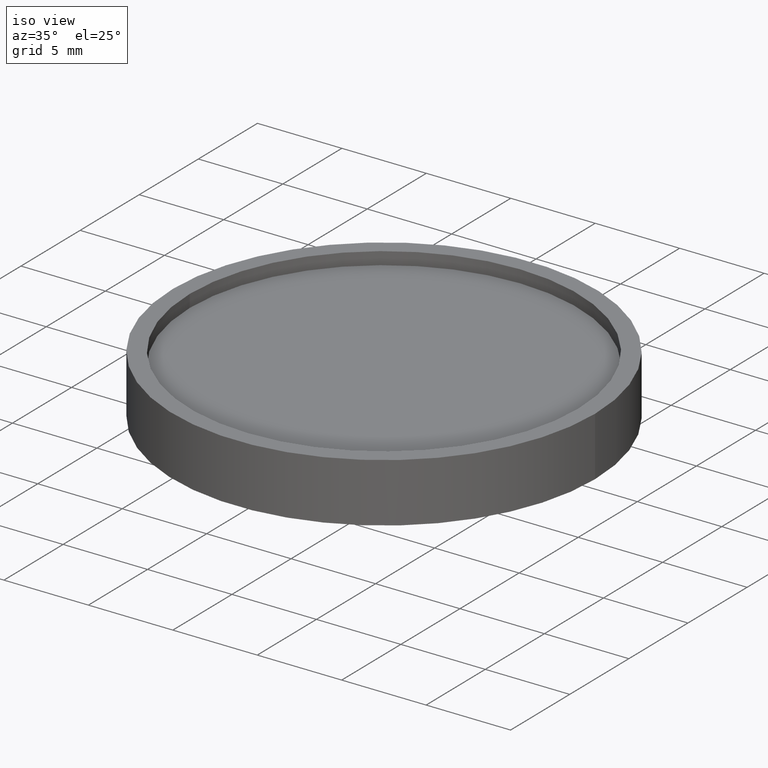
[diagram: clean part render]
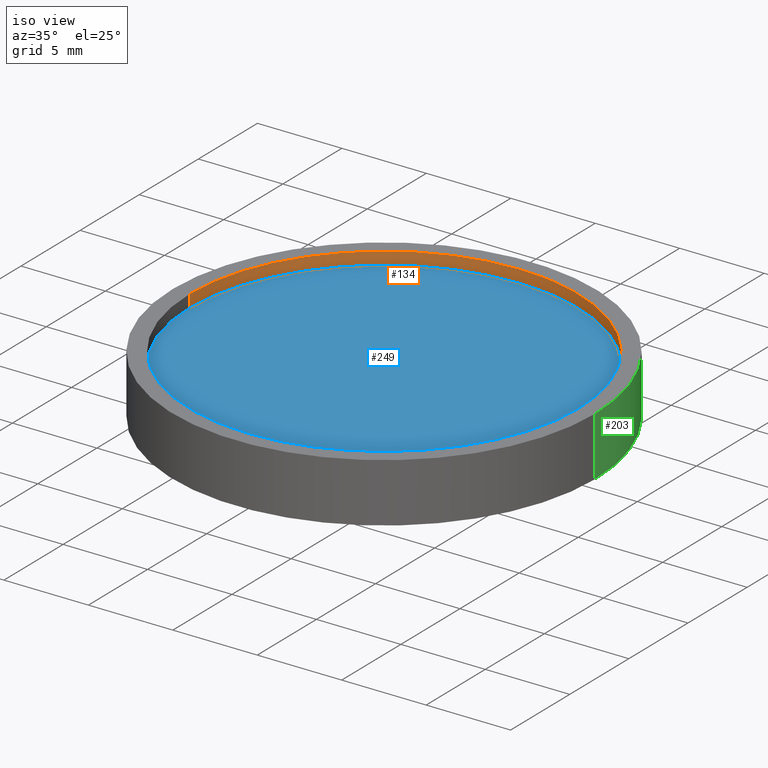
[diagram: same view with three faces highlighted in distinct colors, each labeled with its STEP entity id]
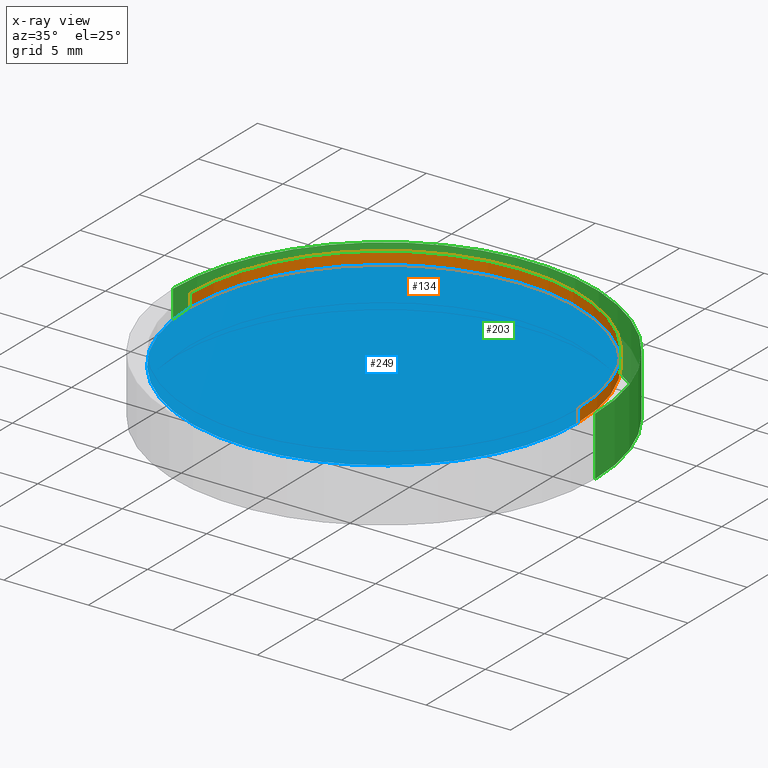
[diagram: x-ray of the same camera — body ghosted, the three highlighted faces saturated]
A machine part, iso view with three faces highlighted in distinct colors.
The next image is the same camera in x-ray (body ghosted, the three faces saturated) — at least one of them is partly hidden behind the body in this view.
Their STEP definitions:

[orange] entity #134 — the highlighted cylindrical surface (partial cylindrical patch) has radius 11.5 mm, axis along (-0, -0, 1).
#14 = EDGE_CURVE ( 'NONE', #90, #156, #280, .T. ) ;
#37 = AXIS2_PLACEMENT_3D ( 'NONE', #370, #147, #87 ) ;
#87 = DIRECTION ( 'NONE',  ( 1.000000000000000000, 0.000000000000000000, 0.000000000000000000 ) ) ;
#90 = VERTEX_POINT ( 'NONE', #243 ) ;
#94 = CIRCLE ( 'NONE', #376, 11.50000000000000000 ) ;
#104 = VERTEX_POINT ( 'NONE', #110 ) ;
#110 = CARTESIAN_POINT ( 'NONE',  ( 11.50000000000000000, 0.000000000000000000, 2.750000000000000000 ) ) ;
#114 = FACE_OUTER_BOUND ( 'NONE', #125, .T. ) ;
#120 = DIRECTION ( 'NONE',  ( 0.000000000000000000, 0.000000000000000000, 1.000000000000000000 ) ) ;
#125 = EDGE_LOOP ( 'NONE', ( #408, #189, #132, #282 ) ) ;
#126 = CARTESIAN_POINT ( 'NONE',  ( 11.50000000000000000, 0.000000000000000000, 3.500000000000000000 ) ) ;
#132 = ORIENTED_EDGE ( 'NONE', *, *, #197, .T. ) ;
#134 = ADVANCED_FACE ( 'NONE', ( #114 ), #360, .F. ) ;
#142 = CARTESIAN_POINT ( 'NONE',  ( -11.50000000000000000, 1.408343819019456176E-15, 3.500000000000000000 ) ) ;
#143 = CIRCLE ( 'NONE', #37, 11.50000000000000000 ) ;
#144 = DIRECTION ( 'NONE',  ( 1.000000000000000000, 0.000000000000000000, 0.000000000000000000 ) ) ;
#147 = DIRECTION ( 'NONE',  ( 0.000000000000000000, 0.000000000000000000, 1.000000000000000000 ) ) ;
#156 = VERTEX_POINT ( 'NONE', #142 ) ;
#157 = CARTESIAN_POINT ( 'NONE',  ( -11.50000000000000000, 1.408343819019456176E-15, 2.750000000000000000 ) ) ;
#183 = VECTOR ( 'NONE', #276, 1000.000000000000000 ) ;
#189 = ORIENTED_EDGE ( 'NONE', *, *, #222, .F. ) ;
#197 = EDGE_CURVE ( 'NONE', #104, #373, #402, .T. ) ;
#202 = CARTESIAN_POINT ( 'NONE',  ( 0.000000000000000000, 0.000000000000000000, 2.750000000000000000 ) ) ;
#222 = EDGE_CURVE ( 'NONE', #104, #90, #143, .T. ) ;
#227 = DIRECTION ( 'NONE',  ( -0.000000000000000000, -0.000000000000000000, 1.000000000000000000 ) ) ;
#231 = EDGE_CURVE ( 'NONE', #373, #156, #94, .T. ) ;
#243 = CARTESIAN_POINT ( 'NONE',  ( -11.50000000000000000, 1.408343819019456176E-15, 2.750000000000000000 ) ) ;
#263 = AXIS2_PLACEMENT_3D ( 'NONE', #202, #227, #144 ) ;
#272 = DIRECTION ( 'NONE',  ( 1.000000000000000000, 0.000000000000000000, 0.000000000000000000 ) ) ;
#276 = DIRECTION ( 'NONE',  ( -0.000000000000000000, -0.000000000000000000, 1.000000000000000000 ) ) ;
#280 = LINE ( 'NONE', #157, #183 ) ;
#282 = ORIENTED_EDGE ( 'NONE', *, *, #231, .T. ) ;
#308 = CARTESIAN_POINT ( 'NONE',  ( 11.50000000000000000, 0.000000000000000000, 2.750000000000000000 ) ) ;
#323 = VECTOR ( 'NONE', #334, 1000.000000000000000 ) ;
#334 = DIRECTION ( 'NONE',  ( -0.000000000000000000, -0.000000000000000000, 1.000000000000000000 ) ) ;
#360 = CYLINDRICAL_SURFACE ( 'NONE', #263, 11.50000000000000000 ) ;
#370 = CARTESIAN_POINT ( 'NONE',  ( 0.000000000000000000, 0.000000000000000000, 2.750000000000000000 ) ) ;
#373 = VERTEX_POINT ( 'NONE', #126 ) ;
#376 = AXIS2_PLACEMENT_3D ( 'NONE', #405, #120, #272 ) ;
#402 = LINE ( 'NONE', #308, #323 ) ;
#405 = CARTESIAN_POINT ( 'NONE',  ( 0.000000000000000000, 0.000000000000000000, 3.500000000000000000 ) ) ;
#408 = ORIENTED_EDGE ( 'NONE', *, *, #14, .F. ) ;

[blue] entity #249 — the highlighted planar face has unit normal (0, 0, 1).
#28 = ORIENTED_EDGE ( 'NONE', *, *, #355, .T. ) ;
#37 = AXIS2_PLACEMENT_3D ( 'NONE', #370, #147, #87 ) ;
#46 = CIRCLE ( 'NONE', #241, 11.50000000000000000 ) ;
#80 = PLANE ( 'NONE',  #201 ) ;
#87 = DIRECTION ( 'NONE',  ( 1.000000000000000000, 0.000000000000000000, 0.000000000000000000 ) ) ;
#90 = VERTEX_POINT ( 'NONE', #243 ) ;
#104 = VERTEX_POINT ( 'NONE', #110 ) ;
#110 = CARTESIAN_POINT ( 'NONE',  ( 11.50000000000000000, 0.000000000000000000, 2.750000000000000000 ) ) ;
#118 = DIRECTION ( 'NONE',  ( 0.000000000000000000, 0.000000000000000000, 1.000000000000000000 ) ) ;
#143 = CIRCLE ( 'NONE', #37, 11.50000000000000000 ) ;
#147 = DIRECTION ( 'NONE',  ( 0.000000000000000000, 0.000000000000000000, 1.000000000000000000 ) ) ;
#193 = EDGE_LOOP ( 'NONE', ( #309, #28 ) ) ;
#201 = AXIS2_PLACEMENT_3D ( 'NONE', #407, #118, #205 ) ;
#205 = DIRECTION ( 'NONE',  ( 1.000000000000000000, 0.000000000000000000, -0.000000000000000000 ) ) ;
#222 = EDGE_CURVE ( 'NONE', #104, #90, #143, .T. ) ;
#241 = AXIS2_PLACEMENT_3D ( 'NONE', #315, #289, #342 ) ;
#243 = CARTESIAN_POINT ( 'NONE',  ( -11.50000000000000000, 1.408343819019456176E-15, 2.750000000000000000 ) ) ;
#249 = ADVANCED_FACE ( 'NONE', ( #368 ), #80, .T. ) ;
#289 = DIRECTION ( 'NONE',  ( 0.000000000000000000, 0.000000000000000000, 1.000000000000000000 ) ) ;
#309 = ORIENTED_EDGE ( 'NONE', *, *, #222, .T. ) ;
#315 = CARTESIAN_POINT ( 'NONE',  ( 0.000000000000000000, 0.000000000000000000, 2.750000000000000000 ) ) ;
#342 = DIRECTION ( 'NONE',  ( 1.000000000000000000, 0.000000000000000000, 0.000000000000000000 ) ) ;
#355 = EDGE_CURVE ( 'NONE', #90, #104, #46, .T. ) ;
#368 = FACE_OUTER_BOUND ( 'NONE', #193, .T. ) ;
#370 = CARTESIAN_POINT ( 'NONE',  ( 0.000000000000000000, 0.000000000000000000, 2.750000000000000000 ) ) ;
#407 = CARTESIAN_POINT ( 'NONE',  ( 0.000000000000000000, 0.000000000000000000, 2.750000000000000000 ) ) ;

[green] entity #203 — the highlighted cylindrical surface (partial cylindrical patch) has radius 12.5 mm, axis along (-0, -0, -1).
#1 = CARTESIAN_POINT ( 'NONE',  ( -12.50000000000000000, 0.000000000000000000, 0.000000000000000000 ) ) ;
#18 = DIRECTION ( 'NONE',  ( -0.000000000000000000, -0.000000000000000000, -1.000000000000000000 ) ) ;
#21 = ORIENTED_EDGE ( 'NONE', *, *, #173, .T. ) ;
#23 = CARTESIAN_POINT ( 'NONE',  ( 0.000000000000000000, 0.000000000000000000, 0.000000000000000000 ) ) ;
#34 = CIRCLE ( 'NONE', #88, 12.50000000000000000 ) ;
#43 = DIRECTION ( 'NONE',  ( 0.000000000000000000, 0.000000000000000000, 1.000000000000000000 ) ) ;
#56 = VERTEX_POINT ( 'NONE', #349 ) ;
#79 = CARTESIAN_POINT ( 'NONE',  ( 0.000000000000000000, 0.000000000000000000, 3.500000000000000000 ) ) ;
#88 = AXIS2_PLACEMENT_3D ( 'NONE', #79, #43, #115 ) ;
#91 = ORIENTED_EDGE ( 'NONE', *, *, #345, .T. ) ;
#101 = VERTEX_POINT ( 'NONE', #1 ) ;
#103 = DIRECTION ( 'NONE',  ( 1.000000000000000000, 0.000000000000000000, 0.000000000000000000 ) ) ;
#105 = DIRECTION ( 'NONE',  ( -0.000000000000000000, -0.000000000000000000, -1.000000000000000000 ) ) ;
#115 = DIRECTION ( 'NONE',  ( 1.000000000000000000, 0.000000000000000000, 0.000000000000000000 ) ) ;
#154 = VERTEX_POINT ( 'NONE', #168 ) ;
#160 = EDGE_LOOP ( 'NONE', ( #252, #21, #91, #375 ) ) ;
#166 = EDGE_CURVE ( 'NONE', #154, #56, #34, .T. ) ;
#168 = CARTESIAN_POINT ( 'NONE',  ( 12.50000000000000000, 1.530808498934191521E-15, 3.500000000000000000 ) ) ;
#172 = CIRCLE ( 'NONE', #362, 12.50000000000000000 ) ;
#173 = EDGE_CURVE ( 'NONE', #154, #286, #254, .T. ) ;
#203 = ADVANCED_FACE ( 'NONE', ( #302 ), #239, .T. ) ;
#218 = LINE ( 'NONE', #382, #229 ) ;
#229 = VECTOR ( 'NONE', #281, 1000.000000000000000 ) ;
#239 = CYLINDRICAL_SURFACE ( 'NONE', #265, 12.50000000000000000 ) ;
#252 = ORIENTED_EDGE ( 'NONE', *, *, #166, .F. ) ;
#254 = LINE ( 'NONE', #386, #257 ) ;
#257 = VECTOR ( 'NONE', #105, 1000.000000000000000 ) ;
#265 = AXIS2_PLACEMENT_3D ( 'NONE', #366, #18, #271 ) ;
#271 = DIRECTION ( 'NONE',  ( -1.000000000000000000, 0.000000000000000000, 0.000000000000000000 ) ) ;
#281 = DIRECTION ( 'NONE',  ( -0.000000000000000000, -0.000000000000000000, -1.000000000000000000 ) ) ;
#286 = VERTEX_POINT ( 'NONE', #401 ) ;
#302 = FACE_OUTER_BOUND ( 'NONE', #160, .T. ) ;
#321 = EDGE_CURVE ( 'NONE', #56, #101, #218, .T. ) ;
#345 = EDGE_CURVE ( 'NONE', #286, #101, #172, .T. ) ;
#349 = CARTESIAN_POINT ( 'NONE',  ( -12.50000000000000000, 0.000000000000000000, 3.500000000000000000 ) ) ;
#362 = AXIS2_PLACEMENT_3D ( 'NONE', #23, #413, #103 ) ;
#366 = CARTESIAN_POINT ( 'NONE',  ( 0.000000000000000000, 0.000000000000000000, 3.500000000000000000 ) ) ;
#375 = ORIENTED_EDGE ( 'NONE', *, *, #321, .F. ) ;
#382 = CARTESIAN_POINT ( 'NONE',  ( -12.50000000000000000, 0.000000000000000000, 3.500000000000000000 ) ) ;
#386 = CARTESIAN_POINT ( 'NONE',  ( 12.50000000000000000, 1.530808498934191521E-15, 3.500000000000000000 ) ) ;
#401 = CARTESIAN_POINT ( 'NONE',  ( 12.50000000000000000, 1.530808498934191521E-15, 0.000000000000000000 ) ) ;
#413 = DIRECTION ( 'NONE',  ( 0.000000000000000000, 0.000000000000000000, 1.000000000000000000 ) ) ;